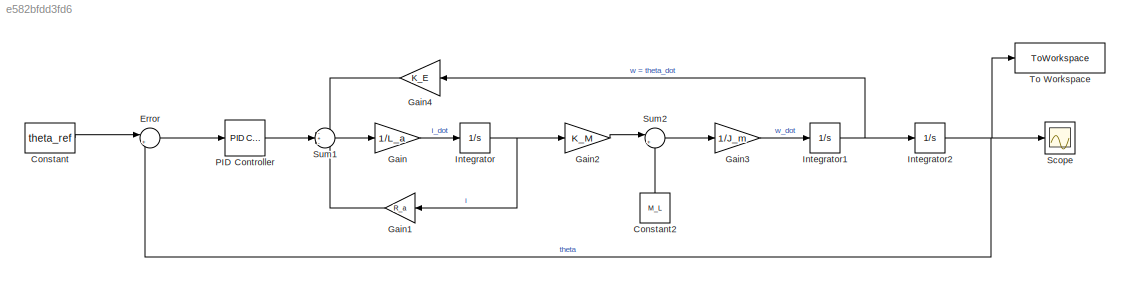
MODEL slx_e582bfdd3fd6
KIND model
CONFIG AbsTol = auto
CONFIG EnableMultiTasking = off
CONFIG FixedStep = auto
CONFIG MaxStep = auto
CONFIG MinStep = auto
CONFIG RelTol = 1e-3
CONFIG SampleTimeConstraint = Unconstrained
CONFIG SolverName = VariableStepAuto
CONFIG StartTime = 0.0
CONFIG StopTime = t
BLOCK [Constant] Constant
  Value = theta_ref
BLOCK [Constant] Constant2
  NameLocation = right
  Value = M_L
BLOCK [Sum] Error
  Inputs = |+-
  NameLocation = top
BLOCK [Gain] Gain
  Gain = 1/L_a
BLOCK [Gain] Gain1
  Gain = R_a
  NameLocation = top
BLOCK [Gain] Gain2
  Gain = K_M
BLOCK [Gain] Gain3
  Gain = 1/J_m
BLOCK [Gain] Gain4
  Gain = K_E
  NameLocation = top
BLOCK [Integrator] Integrator
BLOCK [Integrator] Integrator1
BLOCK [Integrator] Integrator2
BLOCK [Reference] PID Controller  REF=slpidlib/PID Controller
  LibrarySourceBlock = simulink/Continuous/PID Controller
  SourceBlock = slpidlib/PID Controller
  SourceType = PID 1dof
BLOCK [Scope] Scope
  Floating = off
  NumInputPorts = 1
  ScopeSpecificationString = Simulink.scopes.TimeScopeBlockCfg('CurrentConfiguration', extmgr.ConfigurationSet(extmgr.Configuration('Core','General UI',true),extmgr.Configuration('Core','Source UI',true),extmgr.Configuration('Sources','WiredSimulink',true),extmgr.Configuration('Visuals','Time Domain',true,'SerializedDisplays',{struct('MinYLimReal','-0.29808','MaxYLimReal','2.68269','YLabelReal','','MinYLimMag','0.00000','MaxY...<+1449ch>
BLOCK [Sum] Sum1
  Inputs = -+-
BLOCK [Sum] Sum2
  Inputs = |+-
BLOCK [ToWorkspace] To Workspace
  FixptAsFi = on
  MaxDataPoints = inf
  SampleTime = -1
  SaveFormat = Timeseries
  VariableName = theta
LINE Constant2:1 -> Sum2:2
LINE Constant:1 -> Error:1
LINE Error:1 -> PID Controller:1
LINE Gain1:1 -> Sum1:3
LINE Gain2:1 -> Sum2:1
LINE Gain3:1 -> Integrator1:1
LINE Gain4:1 -> Sum1:1
LINE Gain:1 -> Integrator:1
NET Integrator1:1 -> Gain4:1, Integrator2:1
NET Integrator2:1 -> Error:2, Scope:1, To Workspace:1
NET Integrator:1 -> Gain1:1, Gain2:1
LINE PID Controller:1 -> Sum1:2
LINE Sum1:1 -> Gain:1
LINE Sum2:1 -> Gain3:1
note: NET lines group one-source signal fan-out (src -> all destinations, sorted); 1:1 wires keep LINE
